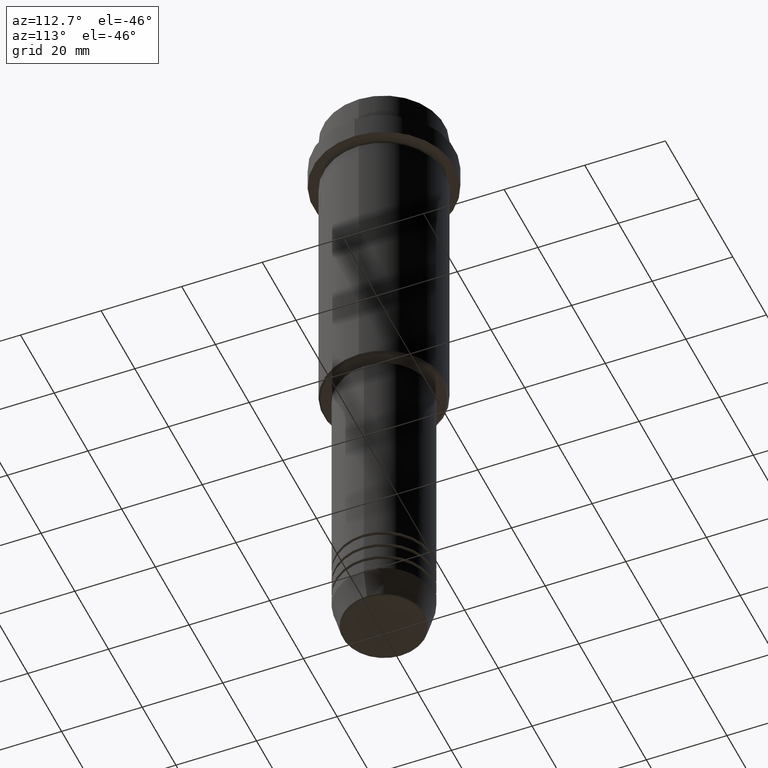
[diagram: clean part render]
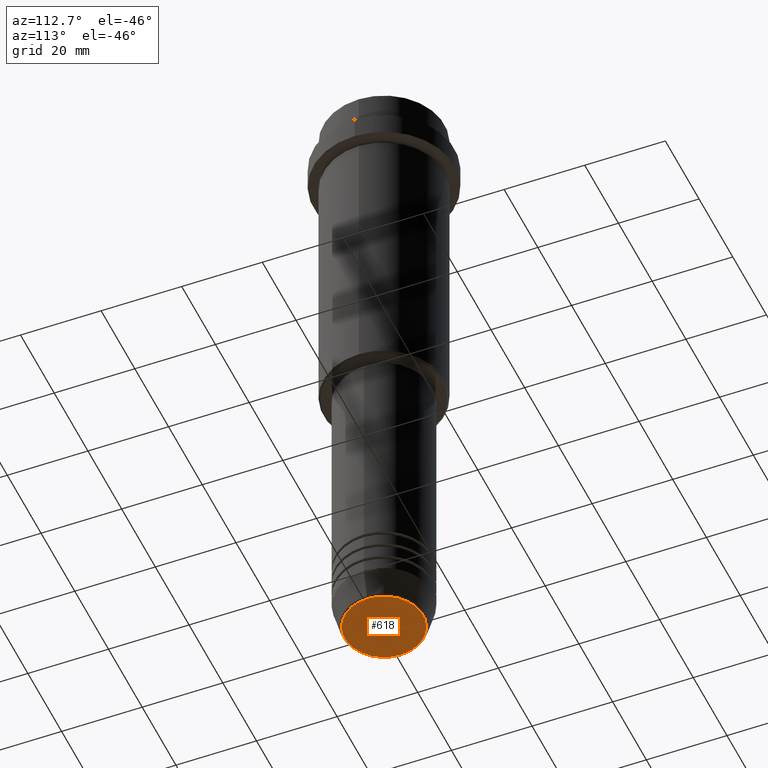
[diagram: same view with one face highlighted and labeled with its STEP entity id]
A machine part, auxiliary view. The second image highlights one B-rep face of the part: STEP entity #618.
In plain terms, the highlighted planar face has unit normal (0, -0, 1).
Its self-contained STEP definition (entity closure, byte-faithful):
#24 = ORIENTED_EDGE ( 'NONE', *, *, #1385, .T. ) ;
#58 = VERTEX_POINT ( 'NONE', #489 ) ;
#139 = AXIS2_PLACEMENT_3D ( 'NONE', #1324, #1068, #1180 ) ;
#294 = AXIS2_PLACEMENT_3D ( 'NONE', #1357, #1050, #583 ) ;
#335 = EDGE_CURVE ( 'NONE', #58, #1069, #717, .T. ) ;
#358 = CIRCLE ( 'NONE', #294, 9.740692158992658278 ) ;
#428 = FACE_OUTER_BOUND ( 'NONE', #1019, .T. ) ;
#489 = CARTESIAN_POINT ( 'NONE',  ( -9.740692158992658278, 1.222463696683474999E-15, -160.0000000000000000 ) ) ;
#558 = DIRECTION ( 'NONE',  ( 0.000000000000000000, 0.000000000000000000, -1.000000000000000000 ) ) ;
#583 = DIRECTION ( 'NONE',  ( 1.000000000000000000, 0.000000000000000000, 0.000000000000000000 ) ) ;
#618 = ADVANCED_FACE ( 'NONE', ( #428 ), #754, .F. ) ;
#717 = CIRCLE ( 'NONE', #904, 9.740692158992658278 ) ;
#754 = PLANE ( 'NONE',  #139 ) ;
#904 = AXIS2_PLACEMENT_3D ( 'NONE', #1029, #558, #1356 ) ;
#1019 = EDGE_LOOP ( 'NONE', ( #24, #1331 ) ) ;
#1029 = CARTESIAN_POINT ( 'NONE',  ( 0.000000000000000000, 0.000000000000000000, -160.0000000000000000 ) ) ;
#1050 = DIRECTION ( 'NONE',  ( 0.000000000000000000, 0.000000000000000000, -1.000000000000000000 ) ) ;
#1068 = DIRECTION ( 'NONE',  ( 0.000000000000000000, -0.000000000000000000, 1.000000000000000000 ) ) ;
#1069 = VERTEX_POINT ( 'NONE', #1178 ) ;
#1178 = CARTESIAN_POINT ( 'NONE',  ( 9.740692158992658278, 0.000000000000000000, -160.0000000000000000 ) ) ;
#1180 = DIRECTION ( 'NONE',  ( 1.000000000000000000, 0.000000000000000000, 0.000000000000000000 ) ) ;
#1324 = CARTESIAN_POINT ( 'NONE',  ( 0.000000000000000000, 0.000000000000000000, -160.0000000000000000 ) ) ;
#1331 = ORIENTED_EDGE ( 'NONE', *, *, #335, .T. ) ;
#1356 = DIRECTION ( 'NONE',  ( 1.000000000000000000, 0.000000000000000000, 0.000000000000000000 ) ) ;
#1357 = CARTESIAN_POINT ( 'NONE',  ( 0.000000000000000000, 0.000000000000000000, -160.0000000000000000 ) ) ;
#1385 = EDGE_CURVE ( 'NONE', #1069, #58, #358, .T. ) ;